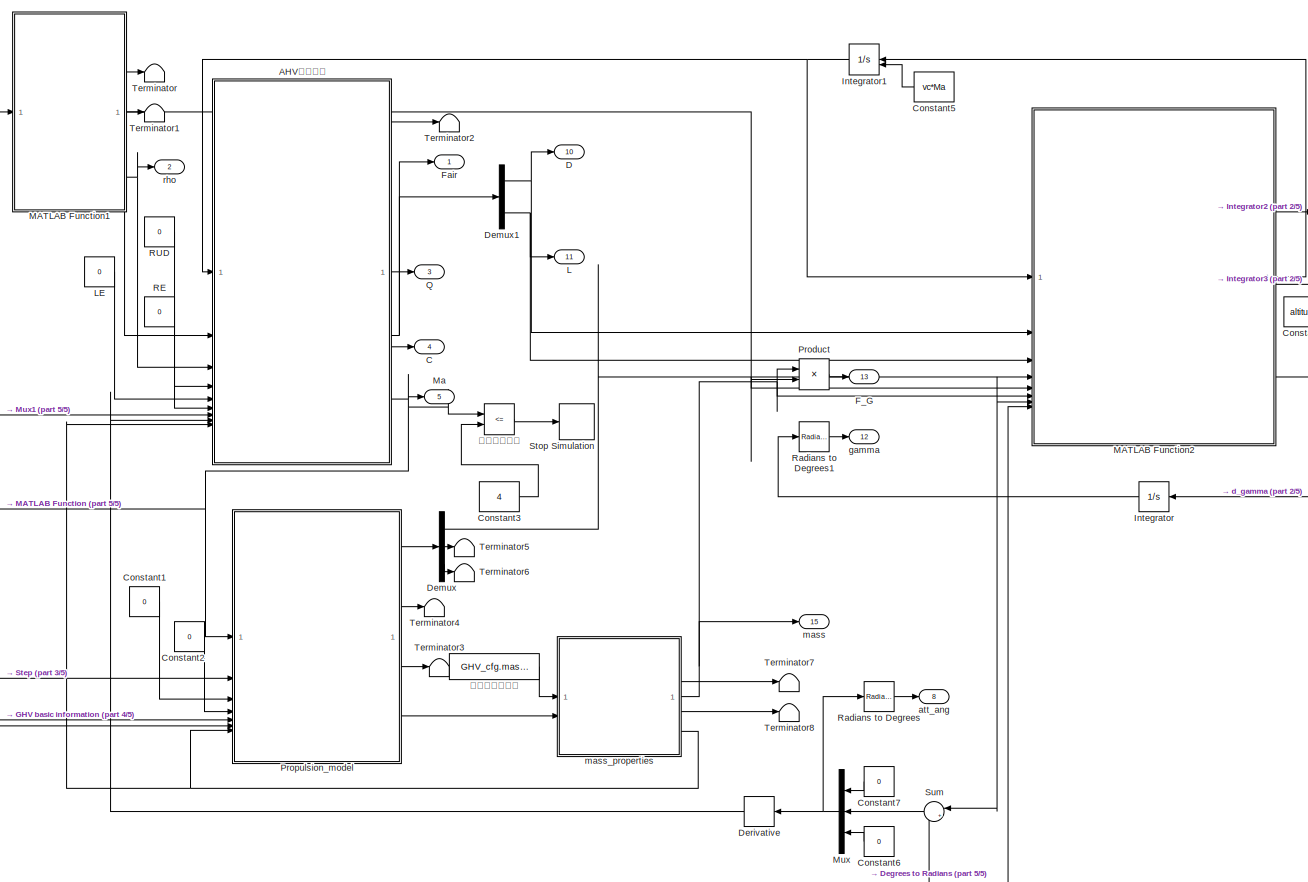
[diagram: root canvas - part 1/5, right side, full height]
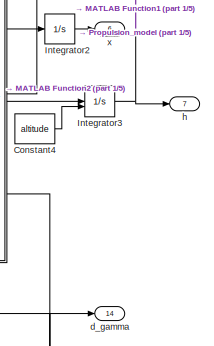
[diagram: root canvas - part 2/5, middle right region]
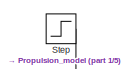
[diagram: root canvas - part 3/5, central region]
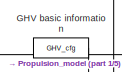
[diagram: root canvas - part 4/5, central region]
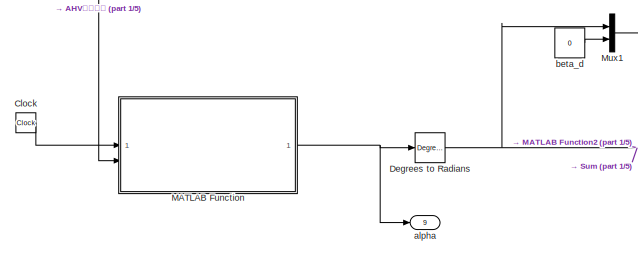
[diagram: root canvas - part 5/5, bottom left region]
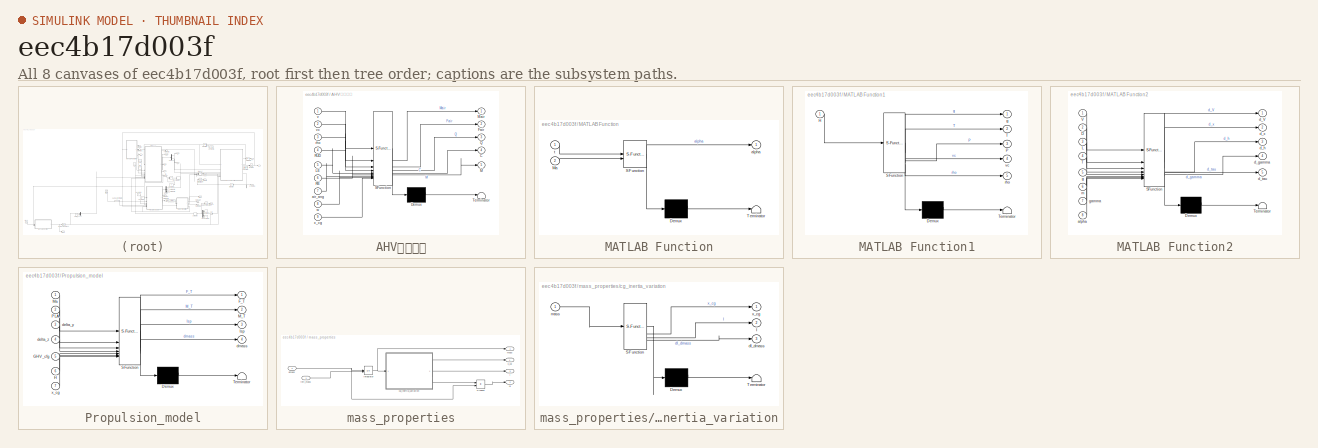
[diagram: thumbnail index - all 8 canvases of the model, root first then tree order]
MODEL slx_eec4b17d003f
KIND model
CONFIG AbsTol = auto
CONFIG EnableMultiTasking = off
CONFIG FixedStep = 0.001
CONFIG InitFcn = run('init.m')
CONFIG MaxStep = 0.1
CONFIG MinStep = auto
CONFIG RelTol = auto
CONFIG SampleTimeConstraint = Unconstrained
CONFIG SolverName = VariableStepAuto
CONFIG StartTime = 0.0
CONFIG StopTime = 2500
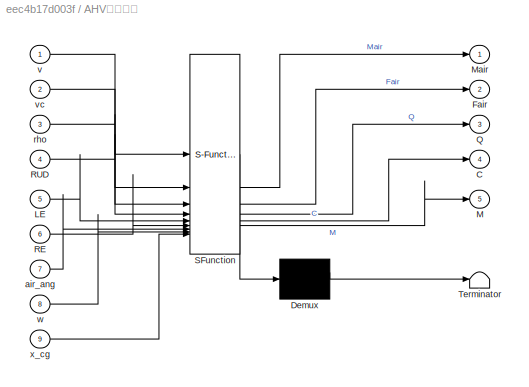
BLOCK [SubSystem] AHV气动参数
  ErrorFcn = Stateflow.Translate.translate
  PermitHierarchicalResolution = ExplicitOnly
  SFBlockType = MATLAB Function
  TreatAsAtomicUnit = on
BLOCK [Demux] AHV气动参数/ Demux 
  Outputs = 1
BLOCK [S-Function] AHV气动参数/ SFunction 
  EnableBusSupport = on
  FunctionName = sf_sfun
  PortCounts = [9 6]
  SFcnIsStateOwnerBlock = off
  SFunctionDeploymentMode = off
  Tag = Stateflow S-Function 4
BLOCK [Terminator] AHV气动参数/ Terminator 
BLOCK [Outport] AHV气动参数/C
  Port = 4
BLOCK [Outport] AHV气动参数/Fair
  Port = 2
BLOCK [Inport] AHV气动参数/LE
  Port = 5
BLOCK [Outport] AHV气动参数/M
  Port = 5
BLOCK [Outport] AHV气动参数/Mair
BLOCK [Outport] AHV气动参数/Q
  Port = 3
BLOCK [Inport] AHV气动参数/RE
  Port = 6
BLOCK [Inport] AHV气动参数/RUD
  Port = 4
BLOCK [Inport] AHV气动参数/air_ang
  Port = 7
BLOCK [Inport] AHV气动参数/rho
  Port = 3
BLOCK [Inport] AHV气动参数/v
BLOCK [Inport] AHV气动参数/vc
  Port = 2
BLOCK [Inport] AHV气动参数/w
  Port = 8
BLOCK [Inport] AHV气动参数/x_cg
  Port = 9
BLOCK [Outport] C
  Port = 4
  SignalName = C
BLOCK [Clock] Clock
BLOCK [Constant] Constant1
  Value = 0
BLOCK [Constant] Constant2
  Value = 0
BLOCK [Constant] Constant3
  Value = 4
BLOCK [Constant] Constant4
  Value = altitude
BLOCK [Constant] Constant5
  Value = vc*Ma
BLOCK [Constant] Constant6
  Value = 0
BLOCK [Constant] Constant7
  Value = 0
BLOCK [Outport] D
  Port = 10
BLOCK [Reference] Degrees to Radians  REF=simulink_extras/Transformations/Degrees to
Radians
  SourceBlock = simulink_extras/Transformations/Degrees to\nRadians
  SourceType = DegreesToRadians
BLOCK [Demux] Demux
  Outputs = 3
BLOCK [Demux] Demux1
  Outputs = 3
BLOCK [Derivative] Derivative
BLOCK [Outport] F_G
  Port = 13
BLOCK [Outport] Fair
  SignalName = Fair
BLOCK [Constant] GHV basic information
  OutDataTypeStr = Bus: slBus1
  Value = GHV_cfg
  VectorParams1D = off
BLOCK [Integrator] Integrator
BLOCK [Integrator] Integrator1
  InitialConditionSource = external
BLOCK [Integrator] Integrator2
BLOCK [Integrator] Integrator3
  InitialConditionSource = external
BLOCK [Outport] L
  Port = 11
BLOCK [Constant] LE
  Value = 0
BLOCK [SubSystem] MATLAB Function
  ErrorFcn = Stateflow.Translate.translate
  PermitHierarchicalResolution = ExplicitOnly
  SFBlockType = MATLAB Function
  TreatAsAtomicUnit = on
BLOCK [Demux] MATLAB Function/ Demux 
  Outputs = 1
BLOCK [S-Function] MATLAB Function/ SFunction 
  EnableBusSupport = on
  FunctionName = sf_sfun
  PortCounts = [2 2]
  SFcnIsStateOwnerBlock = off
  SFunctionDeploymentMode = off
  Tag = Stateflow S-Function 1
BLOCK [Terminator] MATLAB Function/ Terminator 
BLOCK [Inport] MATLAB Function/Ma
  Port = 2
BLOCK [Outport] MATLAB Function/alpha
BLOCK [Inport] MATLAB Function/t
BLOCK [SubSystem] MATLAB Function1
  ErrorFcn = Stateflow.Translate.translate
  PermitHierarchicalResolution = ExplicitOnly
  SFBlockType = MATLAB Function
  TreatAsAtomicUnit = on
BLOCK [Demux] MATLAB Function1/ Demux 
  Outputs = 1
BLOCK [S-Function] MATLAB Function1/ SFunction 
  EnableBusSupport = on
  FunctionName = sf_sfun
  PortCounts = [1 6]
  SFcnIsStateOwnerBlock = off
  SFunctionDeploymentMode = off
  Tag = Stateflow S-Function 5
BLOCK [Terminator] MATLAB Function1/ Terminator 
BLOCK [Inport] MATLAB Function1/H
BLOCK [Outport] MATLAB Function1/P
  Port = 3
BLOCK [Outport] MATLAB Function1/T
  Port = 2
BLOCK [Outport] MATLAB Function1/g
BLOCK [Outport] MATLAB Function1/rho
  Port = 5
BLOCK [Outport] MATLAB Function1/vc
  Port = 4
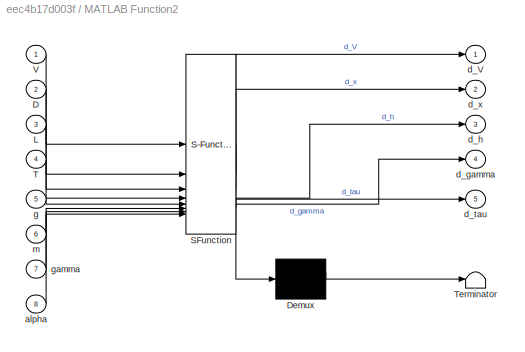
BLOCK [SubSystem] MATLAB Function2
  ErrorFcn = Stateflow.Translate.translate
  PermitHierarchicalResolution = ExplicitOnly
  SFBlockType = MATLAB Function
  TreatAsAtomicUnit = on
BLOCK [Demux] MATLAB Function2/ Demux 
  Outputs = 1
BLOCK [S-Function] MATLAB Function2/ SFunction 
  EnableBusSupport = on
  FunctionName = sf_sfun
  PortCounts = [8 6]
  SFcnIsStateOwnerBlock = off
  SFunctionDeploymentMode = off
  Tag = Stateflow S-Function 2
BLOCK [Terminator] MATLAB Function2/ Terminator 
BLOCK [Inport] MATLAB Function2/D
  Port = 2
BLOCK [Inport] MATLAB Function2/L
  Port = 3
BLOCK [Inport] MATLAB Function2/T
  Port = 4
BLOCK [Inport] MATLAB Function2/V
BLOCK [Inport] MATLAB Function2/alpha
  Port = 8
BLOCK [Outport] MATLAB Function2/d_V
BLOCK [Outport] MATLAB Function2/d_gamma
  Port = 4
BLOCK [Outport] MATLAB Function2/d_h
  Port = 3
BLOCK [Outport] MATLAB Function2/d_tau
  Port = 5
BLOCK [Outport] MATLAB Function2/d_x
  Port = 2
BLOCK [Inport] MATLAB Function2/g
  Port = 5
BLOCK [Inport] MATLAB Function2/gamma
  Port = 7
BLOCK [Inport] MATLAB Function2/m
  Port = 6
BLOCK [Outport] Ma
  Port = 5
BLOCK [Mux] Mux
  DisplayOption = bar
  Inputs = 3
BLOCK [Mux] Mux1
  DisplayOption = bar
  Inputs = 2
BLOCK [Product] Product
BLOCK [SubSystem] Propulsion_model
  ErrorFcn = Stateflow.Translate.translate
  PermitHierarchicalResolution = ExplicitOnly
  SFBlockType = MATLAB Function
  TreatAsAtomicUnit = on
BLOCK [Demux] Propulsion_model/ Demux 
  Outputs = 1
BLOCK [S-Function] Propulsion_model/ SFunction 
  EnableBusSupport = on
  FunctionName = sf_sfun
  PortCounts = [7 5]
  SFcnIsStateOwnerBlock = off
  SFunctionDeploymentMode = off
  Tag = Stateflow S-Function 7
BLOCK [Terminator] Propulsion_model/ Terminator 
BLOCK [Outport] Propulsion_model/F_T
BLOCK [Inport] Propulsion_model/GHV_cfg
  Port = 5
BLOCK [Inport] Propulsion_model/H
  Port = 6
BLOCK [Outport] Propulsion_model/Isp
  Port = 3
BLOCK [Outport] Propulsion_model/M_T
  Port = 2
BLOCK [Inport] Propulsion_model/Ma
BLOCK [Inport] Propulsion_model/PLA
  Port = 2
BLOCK [Inport] Propulsion_model/delta_y
  Port = 3
BLOCK [Inport] Propulsion_model/delta_z
  Port = 4
BLOCK [Outport] Propulsion_model/dmass
  Port = 4
BLOCK [Inport] Propulsion_model/x_cg
  Port = 7
BLOCK [Outport] Q
  Port = 3
  SignalName = Q
BLOCK [Constant] RE
  Value = 0
BLOCK [Constant] RUD
  Value = 0
BLOCK [Reference] Radians to Degrees  REF=simulink_extras/Transformations/Radians
to Degrees
  SourceBlock = simulink_extras/Transformations/Radians\nto Degrees
  SourceType = RadiansToDegrees
BLOCK [Reference] Radians to Degrees1  REF=simulink_extras/Transformations/Radians
to Degrees
  SourceBlock = simulink_extras/Transformations/Radians\nto Degrees
  SourceType = RadiansToDegrees
BLOCK [Step] Step
  After = 0
  Before = 1
  SampleTime = 0
  Time = 150
BLOCK [Stop] Stop Simulation
BLOCK [Sum] Sum
  Inputs = |++
BLOCK [Terminator] Terminator
BLOCK [Terminator] Terminator1
BLOCK [Terminator] Terminator2
BLOCK [Terminator] Terminator3
BLOCK [Terminator] Terminator4
BLOCK [Terminator] Terminator5
BLOCK [Terminator] Terminator6
BLOCK [Terminator] Terminator7
BLOCK [Terminator] Terminator8
BLOCK [Outport] alpha
  Port = 9
BLOCK [Outport] att_ang
  Port = 8
BLOCK [Constant] beta_d
  Value = 0
BLOCK [Outport] d_gamma
  Port = 14
BLOCK [Outport] gamma
  Port = 12
BLOCK [Outport] h
  Port = 7
BLOCK [Outport] mass
  Port = 15
BLOCK [SubSystem] mass_properties
BLOCK [Outport] mass_properties/I
  Port = 3
BLOCK [Integrator] mass_properties/Integrator
  InitialConditionSource = external
BLOCK [Product] mass_properties/Product
BLOCK [SubSystem] mass_properties/cg_inertia_variation
  ErrorFcn = Stateflow.Translate.translate
  PermitHierarchicalResolution = ExplicitOnly
  SFBlockType = MATLAB Function
  TreatAsAtomicUnit = on
BLOCK [Demux] mass_properties/cg_inertia_variation/ Demux 
  Outputs = 1
BLOCK [S-Function] mass_properties/cg_inertia_variation/ SFunction 
  EnableBusSupport = on
  FunctionName = sf_sfun
  PortCounts = [1 4]
  SFcnIsStateOwnerBlock = off
  SFunctionDeploymentMode = off
  Tag = Stateflow S-Function 8
BLOCK [Terminator] mass_properties/cg_inertia_variation/ Terminator 
BLOCK [Outport] mass_properties/cg_inertia_variation/I
  Port = 2
BLOCK [Outport] mass_properties/cg_inertia_variation/dI_dmass
  Port = 3
BLOCK [Inport] mass_properties/cg_inertia_variation/mass
BLOCK [Outport] mass_properties/cg_inertia_variation/x_cg
BLOCK [Outport] mass_properties/dI
  Port = 2
BLOCK [Inport] mass_properties/dmass
  Port = 2
BLOCK [Inport] mass_properties/init_mass
BLOCK [Outport] mass_properties/mass
BLOCK [Outport] mass_properties/x_cg
  Port = 4
BLOCK [Outport] rho
  Port = 2
  SignalName = rho
BLOCK [Outport] x
  Port = 6
BLOCK [RelationalOperator] 仿真停止条件
  InputSameDT = off
  Operator = <=
  OutDataTypeStr = boolean
  RndMeth = Simplest
BLOCK [Constant] 飞行器初始质量
  Value = GHV_cfg.mass_full
LINE AHV气动参数:1 -> Terminator2:1
NET AHV气动参数:2 -> Demux1:1, Fair:1
LINE AHV气动参数:3 -> Q:1
LINE AHV气动参数:4 -> C:1
NET AHV气动参数:5 -> MATLAB Function:2, Ma:1, Propulsion_model:1, 仿真停止条件:1
LINE Clock:1 -> MATLAB Function:1
LINE Constant1:1 -> Propulsion_model:3
LINE Constant2:1 -> Propulsion_model:4
LINE Constant3:1 -> 仿真停止条件:2
LINE Constant4:1 -> Integrator3:2
LINE Constant5:1 -> Integrator1:2
LINE Constant6:1 -> Mux:3
LINE Constant7:1 -> Mux:1
NET Degrees to Radians:1 -> MATLAB Function2:8, Mux1:1, Sum:2
NET Demux1:1 -> D:1, MATLAB Function2:2
NET Demux1:3 -> L:1, MATLAB Function2:3
LINE Demux:1 -> MATLAB Function2:4
LINE Demux:2 -> Terminator5:1
LINE Demux:3 -> Terminator6:1
LINE Derivative:1 -> AHV气动参数:8
LINE GHV basic information:1 -> Propulsion_model:5
NET Integrator1:1 -> AHV气动参数:1, MATLAB Function2:1
LINE Integrator2:1 -> x:1
NET Integrator3:1 -> MATLAB Function1:1, Propulsion_model:6, h:1
NET Integrator:1 -> MATLAB Function2:7, Radians to Degrees1:1, Sum:1
LINE LE:1 -> AHV气动参数:5
NET MATLAB Function1:1 -> MATLAB Function2:5, Product:2
LINE MATLAB Function1:2 -> Terminator:1
LINE MATLAB Function1:3 -> Terminator1:1
LINE MATLAB Function1:4 -> AHV气动参数:2
NET MATLAB Function1:5 -> AHV气动参数:3, rho:1
LINE MATLAB Function2:1 -> Integrator1:1
LINE MATLAB Function2:2 -> Integrator2:1
LINE MATLAB Function2:3 -> Integrator3:1
NET MATLAB Function2:4 -> Integrator:1, d_gamma:1
NET MATLAB Function:1 -> Degrees to Radians:1, alpha:1
LINE Mux1:1 -> AHV气动参数:7
NET Mux:1 -> Derivative:1, Radians to Degrees:1
LINE Product:1 -> F_G:1
LINE Propulsion_model:1 -> Demux:1
LINE Propulsion_model:2 -> Terminator4:1
LINE Propulsion_model:3 -> Terminator3:1
LINE Propulsion_model:4 -> mass_properties:2
LINE RE:1 -> AHV气动参数:6
LINE RUD:1 -> AHV气动参数:4
LINE Radians to Degrees1:1 -> gamma:1
LINE Radians to Degrees:1 -> att_ang:1
LINE Step:1 -> Propulsion_model:2
LINE Sum:1 -> Mux:2
LINE beta_d:1 -> Mux1:2
NET mass_properties/Integrator:1 -> mass_properties/cg_inertia_variation:1, mass_properties/mass:1
LINE mass_properties/Product:1 -> mass_properties/dI:1
LINE mass_properties/cg_inertia_variation:1 -> mass_properties/x_cg:1
LINE mass_properties/cg_inertia_variation:2 -> mass_properties/I:1
LINE mass_properties/cg_inertia_variation:3 -> mass_properties/Product:1
NET mass_properties/dmass:1 -> mass_properties/Integrator:1, mass_properties/Product:2
LINE mass_properties/init_mass:1 -> mass_properties/Integrator:2
NET mass_properties:1 -> MATLAB Function2:6, Product:1, mass:1
LINE mass_properties:2 -> Terminator7:1
LINE mass_properties:3 -> Terminator8:1
NET mass_properties:4 -> AHV气动参数:9, Propulsion_model:7
LINE 仿真停止条件:1 -> Stop Simulation:1
LINE 飞行器初始质量:1 -> mass_properties:1
note: NET lines group one-source signal fan-out (src -> all destinations, sorted); 1:1 wires keep LINE
CHART MATLAB Function states=1 transitions=1
  STATE_LABEL 'eML_blk_kernel()'
  STATE_LABEL 'SCRIPT:\nfunction alpha = S_reference_alpha(t, Ma)\n\n    alpha = reference_alpha(t, Ma);\n\nend\n\n\n\n'
CHART MATLAB Function2 states=1 transitions=1
  STATE_LABEL 'eML_blk_kernel()'
  STATE_LABEL 'SCRIPT:\nfunction [d_V, d_x, d_h, d_gamma, d_tau] = S_three_dof_sphere_trajectory(V, D, L, T, g, m, gamma, alpha)\n    \n[d_V, d_gamma, d_x, d_h, d_tau] = three_dof_sphere_trajectory(T, D, L, alpha, m, g, V, gamma);\n\n\nend\n'
CHART AHV气动参数 states=1 transitions=1
  STATE_LABEL 'eML_blk_kernel()'
  STATE_LABEL 'SCRIPT:\nfunction [Mair, Fair, Q, C, M] = S_Get_Aerodynamic_xcg(v, vc, rho, RUD, LE, RE, air_ang, w, x_cg)\n\n    Fair = zeros(3, 1);\n    Mair = zeros(3, 1);\n    C = zeros(6, 1);\n    M = zeros(1, 1);\n    Q = zeros(1, 1);\n\n[M, Fair, Mair, Q, C] = Get_Aerodynamic_xcg(LE, RE, RUD, air_ang, v, w, vc, rho, x_cg);\n   \nend\n'
CHART MATLAB Function1 states=1 transitions=1
  STATE_LABEL 'eML_blk_kernel()'
  STATE_LABEL 'SCRIPT:\nfunction [g, T, P, vc, rho] = S_EarthEnvironment(H)\n\n[T, vc, P, rho, g] = EarthEnvironment(H);\n\nend'
CHART Propulsion_model states=1 transitions=1
  STATE_LABEL 'eML_blk_kernel()'
  STATE_LABEL 'SCRIPT:\nfunction [F_T,M_T, Isp,  dmass] = S_Propulsion_model(Ma, PLA, delta_y, delta_z, GHV_cfg, H, x_cg)\n    F_T = zeros(3, 1); %#ok<PREALL>\n    M_T = zeros(3, 1); %#ok<PREALL>\n   [F_T, M_T, Isp, dmass] = Propulsion_model(PLA, H, Ma, delta_y, delta_z, GHV_cfg, x_cg);\n\nend'
CHART mass_properties/cg_inertia_variation states=1 transitions=1
  STATE_LABEL 'eML_blk_kernel()'
  STATE_LABEL 'SCRIPT:\nfunction [x_cg, I, dI_dmass] = S_cg_inertia_variation(mass)\n\n     [x_cg, I, dI_dmass] = cg_inertia_variation(mass);\n     \nend\n'
CHART  states=0 transitions=0
CHART  states=0 transitions=0
CHART  states=0 transitions=0
CHART  states=0 transitions=0
CHART  states=0 transitions=0
CHART  states=0 transitions=0
